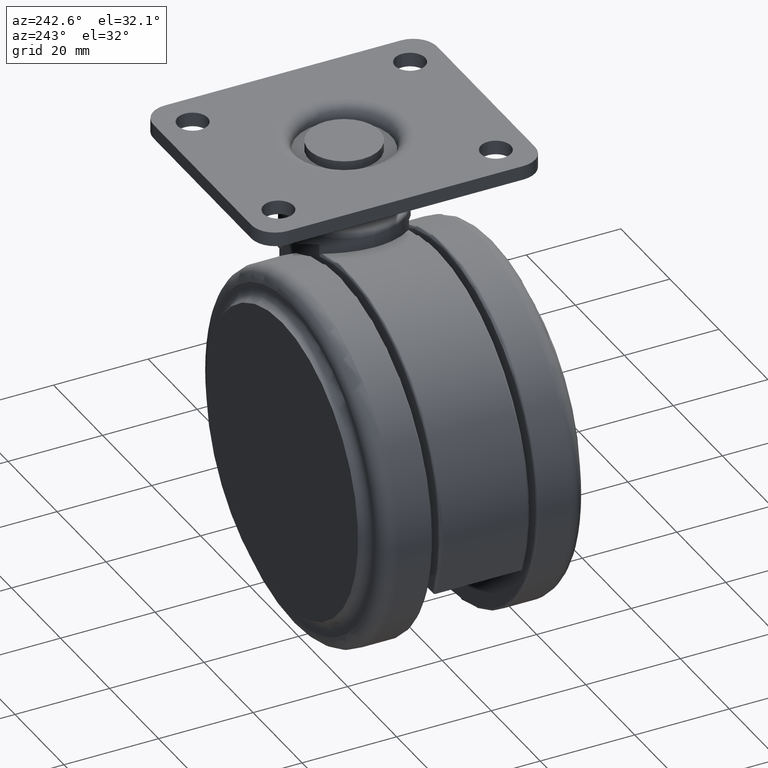
[diagram: clean part render]
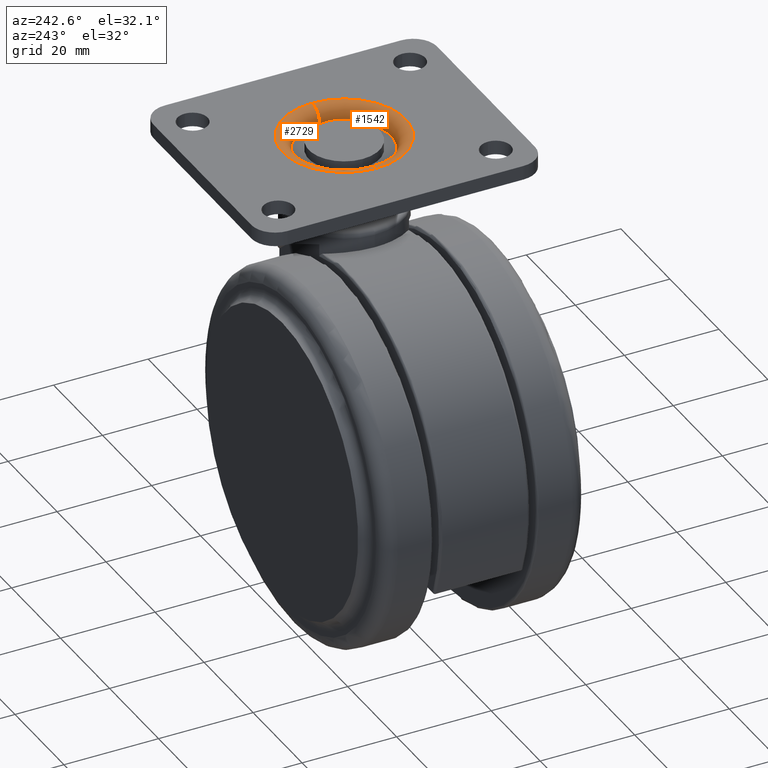
[diagram: same view with one multi-face feature highlighted, each face labeled with its STEP entity id]
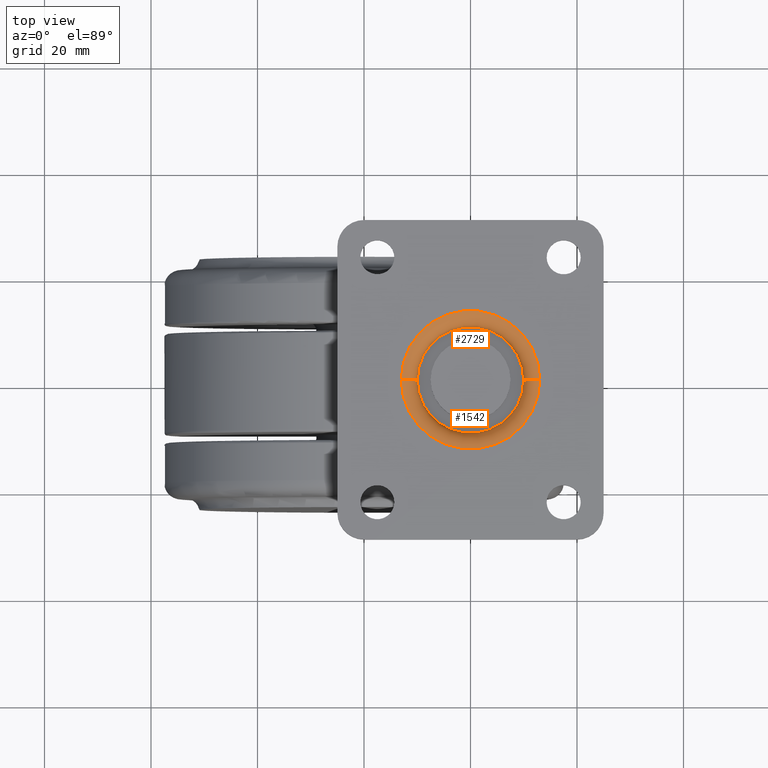
[diagram: same view with one multi-face feature highlighted, each face labeled with its STEP entity id]
A machine part, auxiliary view. The highlighted faces form ONE feature: a constant-radius fillet chain: 2 tangent blend faces with common blend radius 3 mm. The faces share edges in the B-rep.
A second angle (top view) of the same feature is appended — it is thin or edge-on in the first view.
Their STEP definitions:
[1] entity #2729 (Torus):
#109 = CARTESIAN_POINT ( 'NONE',  ( 10.00000000000000000, -2.701336561138454100E-014, 11.00000000000000000 ) ) ;
#264 = EDGE_CURVE ( 'NONE', #3308, #2214, #1440, .T. ) ;
#391 = CARTESIAN_POINT ( 'NONE',  ( -10.00000000000000000, -2.842170943040399500E-014, 11.00000000000000000 ) ) ;
#529 = DIRECTION ( 'NONE',  ( -0.0000000000000000000, -0.0000000000000000000, 1.000000000000000000 ) ) ;
#548 = AXIS2_PLACEMENT_3D ( 'NONE', #797, #3148, #3481 ) ;
#797 = CARTESIAN_POINT ( 'NONE',  ( 0.0000000000000000000, -2.842170943040399500E-014, 11.00000000000000000 ) ) ;
#820 = CARTESIAN_POINT ( 'NONE',  ( 13.00000000000000000, -2.682966859151243800E-014, 11.00000000000000000 ) ) ;
#1077 = AXIS2_PLACEMENT_3D ( 'NONE', #820, #3169, #1167 ) ;
#1124 = ORIENTED_EDGE ( 'NONE', *, *, #1351, .F. ) ;
#1164 = ORIENTED_EDGE ( 'NONE', *, *, #264, .F. ) ;
#1167 = DIRECTION ( 'NONE',  ( -1.000000000000000000, -1.224646799147350200E-016, 0.0000000000000000000 ) ) ;
#1177 = EDGE_CURVE ( 'NONE', #3030, #2214, #2114, .T. ) ;
#1351 = EDGE_CURVE ( 'NONE', #3030, #3824, #1599, .T. ) ;
#1440 = CIRCLE ( 'NONE', #1548, 13.00000000000000000 ) ;
#1467 = DIRECTION ( 'NONE',  ( -1.000000000000000000, 0.0000000000000000000, 0.0000000000000000000 ) ) ;
#1480 = AXIS2_PLACEMENT_3D ( 'NONE', #3599, #1592, #3925 ) ;
#1548 = AXIS2_PLACEMENT_3D ( 'NONE', #3819, #4132, #1467 ) ;
#1592 = DIRECTION ( 'NONE',  ( -0.0000000000000000000, -1.000000000000000000, -0.0000000000000000000 ) ) ;
#1599 = CIRCLE ( 'NONE', #3765, 10.00000000000000000 ) ;
#1615 = CARTESIAN_POINT ( 'NONE',  ( -13.00000000000000000, -2.842170943040399500E-014, 13.99999999999999800 ) ) ;
#1736 = CARTESIAN_POINT ( 'NONE',  ( 13.00000000000000000, -2.682966859151243800E-014, 13.99999999999999800 ) ) ;
#2114 = CIRCLE ( 'NONE', #1077, 3.000000000000000900 ) ;
#2214 = VERTEX_POINT ( 'NONE', #1736 ) ;
#2435 = CIRCLE ( 'NONE', #1480, 2.999999999999999100 ) ;
#2529 = CARTESIAN_POINT ( 'NONE',  ( 0.0000000000000000000, -2.842170943040399500E-014, 11.00000000000000000 ) ) ;
#2613 = FACE_OUTER_BOUND ( 'NONE', #2629, .T. ) ;
#2629 = EDGE_LOOP ( 'NONE', ( #1124, #3976, #1164, #3904 ) ) ;
#2729 = ADVANCED_FACE ( 'NONE', ( #2613 ), #3503, .T. ) ;
#2872 = DIRECTION ( 'NONE',  ( -1.000000000000000000, 0.0000000000000000000, 0.0000000000000000000 ) ) ;
#3030 = VERTEX_POINT ( 'NONE', #109 ) ;
#3148 = DIRECTION ( 'NONE',  ( 0.0000000000000000000, 0.0000000000000000000, -1.000000000000000000 ) ) ;
#3169 = DIRECTION ( 'NONE',  ( -1.224646799147353200E-016, 1.000000000000000000, 0.0000000000000000000 ) ) ;
#3308 = VERTEX_POINT ( 'NONE', #1615 ) ;
#3481 = DIRECTION ( 'NONE',  ( -1.000000000000000000, 0.0000000000000000000, 0.0000000000000000000 ) ) ;
#3503 = TOROIDAL_SURFACE ( 'NONE', #548, 13.00000000000000000, 3.000000000000000000 ) ;
#3599 = CARTESIAN_POINT ( 'NONE',  ( -13.00000000000000000, -2.842170943040399500E-014, 11.00000000000000000 ) ) ;
#3765 = AXIS2_PLACEMENT_3D ( 'NONE', #2529, #529, #2872 ) ;
#3819 = CARTESIAN_POINT ( 'NONE',  ( 0.0000000000000000000, -2.842170943040399500E-014, 14.00000000000000000 ) ) ;
#3824 = VERTEX_POINT ( 'NONE', #391 ) ;
#3904 = ORIENTED_EDGE ( 'NONE', *, *, #4023, .F. ) ;
#3925 = DIRECTION ( 'NONE',  ( 0.0000000000000000000, 0.0000000000000000000, -1.000000000000000000 ) ) ;
#3976 = ORIENTED_EDGE ( 'NONE', *, *, #1177, .T. ) ;
#4023 = EDGE_CURVE ( 'NONE', #3824, #3308, #2435, .T. ) ;
#4132 = DIRECTION ( 'NONE',  ( 0.0000000000000000000, 0.0000000000000000000, -1.000000000000000000 ) ) ;
[2] entity #1542 (Torus):
#109 = CARTESIAN_POINT ( 'NONE',  ( 10.00000000000000000, -2.701336561138454100E-014, 11.00000000000000000 ) ) ;
#196 = DIRECTION ( 'NONE',  ( -1.000000000000000000, 0.0000000000000000000, 0.0000000000000000000 ) ) ;
#254 = TOROIDAL_SURFACE ( 'NONE', #3260, 13.00000000000000000, 3.000000000000000000 ) ;
#391 = CARTESIAN_POINT ( 'NONE',  ( -10.00000000000000000, -2.842170943040399500E-014, 11.00000000000000000 ) ) ;
#667 = CIRCLE ( 'NONE', #1523, 10.00000000000000000 ) ;
#820 = CARTESIAN_POINT ( 'NONE',  ( 13.00000000000000000, -2.682966859151243800E-014, 11.00000000000000000 ) ) ;
#953 = ORIENTED_EDGE ( 'NONE', *, *, #2510, .F. ) ;
#1028 = CARTESIAN_POINT ( 'NONE',  ( 0.0000000000000000000, -2.842170943040399500E-014, 11.00000000000000000 ) ) ;
#1077 = AXIS2_PLACEMENT_3D ( 'NONE', #820, #3169, #1167 ) ;
#1167 = DIRECTION ( 'NONE',  ( -1.000000000000000000, -1.224646799147350200E-016, 0.0000000000000000000 ) ) ;
#1177 = EDGE_CURVE ( 'NONE', #3030, #2214, #2114, .T. ) ;
#1367 = DIRECTION ( 'NONE',  ( -1.000000000000000000, 0.0000000000000000000, 0.0000000000000000000 ) ) ;
#1480 = AXIS2_PLACEMENT_3D ( 'NONE', #3599, #1592, #3925 ) ;
#1523 = AXIS2_PLACEMENT_3D ( 'NONE', #1028, #3365, #1367 ) ;
#1542 = ADVANCED_FACE ( 'NONE', ( #2023 ), #254, .T. ) ;
#1592 = DIRECTION ( 'NONE',  ( -0.0000000000000000000, -1.000000000000000000, -0.0000000000000000000 ) ) ;
#1615 = CARTESIAN_POINT ( 'NONE',  ( -13.00000000000000000, -2.842170943040399500E-014, 13.99999999999999800 ) ) ;
#1736 = CARTESIAN_POINT ( 'NONE',  ( 13.00000000000000000, -2.682966859151243800E-014, 13.99999999999999800 ) ) ;
#2023 = FACE_OUTER_BOUND ( 'NONE', #3462, .T. ) ;
#2114 = CIRCLE ( 'NONE', #1077, 3.000000000000000900 ) ;
#2207 = DIRECTION ( 'NONE',  ( 0.0000000000000000000, 0.0000000000000000000, -1.000000000000000000 ) ) ;
#2214 = VERTEX_POINT ( 'NONE', #1736 ) ;
#2435 = CIRCLE ( 'NONE', #1480, 2.999999999999999100 ) ;
#2510 = EDGE_CURVE ( 'NONE', #3824, #3030, #667, .T. ) ;
#2835 = DIRECTION ( 'NONE',  ( -1.000000000000000000, 0.0000000000000000000, 0.0000000000000000000 ) ) ;
#2855 = CARTESIAN_POINT ( 'NONE',  ( 0.0000000000000000000, -2.842170943040399500E-014, 11.00000000000000000 ) ) ;
#2909 = ORIENTED_EDGE ( 'NONE', *, *, #1177, .F. ) ;
#3030 = VERTEX_POINT ( 'NONE', #109 ) ;
#3132 = EDGE_CURVE ( 'NONE', #2214, #3308, #3792, .T. ) ;
#3169 = DIRECTION ( 'NONE',  ( -1.224646799147353200E-016, 1.000000000000000000, 0.0000000000000000000 ) ) ;
#3181 = DIRECTION ( 'NONE',  ( 0.0000000000000000000, 0.0000000000000000000, -1.000000000000000000 ) ) ;
#3260 = AXIS2_PLACEMENT_3D ( 'NONE', #2855, #3181, #2835 ) ;
#3308 = VERTEX_POINT ( 'NONE', #1615 ) ;
#3365 = DIRECTION ( 'NONE',  ( -0.0000000000000000000, -0.0000000000000000000, 1.000000000000000000 ) ) ;
#3462 = EDGE_LOOP ( 'NONE', ( #2909, #953, #3488, #3705 ) ) ;
#3488 = ORIENTED_EDGE ( 'NONE', *, *, #4023, .T. ) ;
#3599 = CARTESIAN_POINT ( 'NONE',  ( -13.00000000000000000, -2.842170943040399500E-014, 11.00000000000000000 ) ) ;
#3705 = ORIENTED_EDGE ( 'NONE', *, *, #3132, .F. ) ;
#3792 = CIRCLE ( 'NONE', #4017, 13.00000000000000000 ) ;
#3824 = VERTEX_POINT ( 'NONE', #391 ) ;
#3925 = DIRECTION ( 'NONE',  ( 0.0000000000000000000, 0.0000000000000000000, -1.000000000000000000 ) ) ;
#4017 = AXIS2_PLACEMENT_3D ( 'NONE', #4194, #2207, #196 ) ;
#4023 = EDGE_CURVE ( 'NONE', #3824, #3308, #2435, .T. ) ;
#4194 = CARTESIAN_POINT ( 'NONE',  ( 0.0000000000000000000, -2.842170943040399500E-014, 14.00000000000000000 ) ) ;